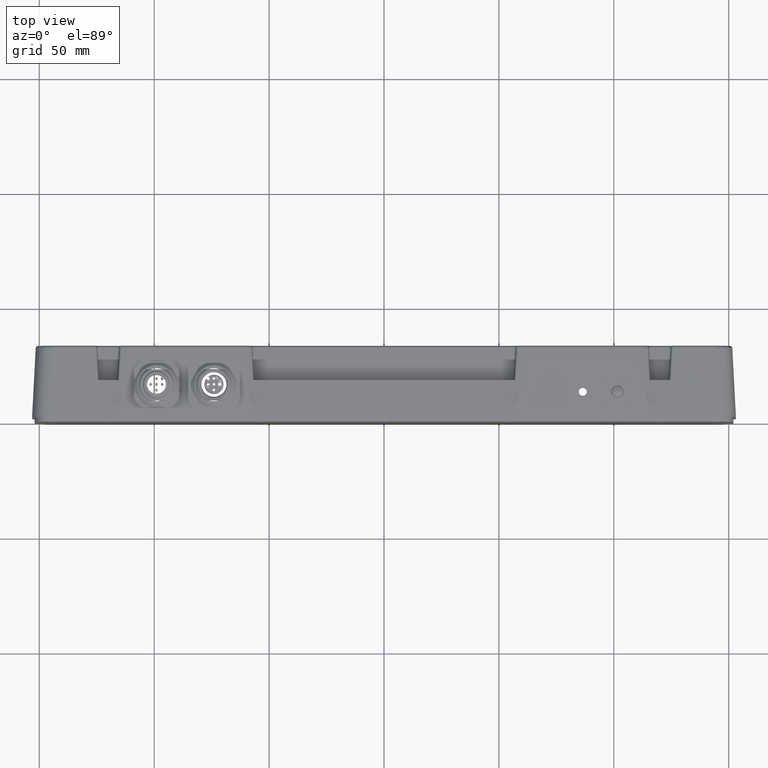
[diagram: clean part render]
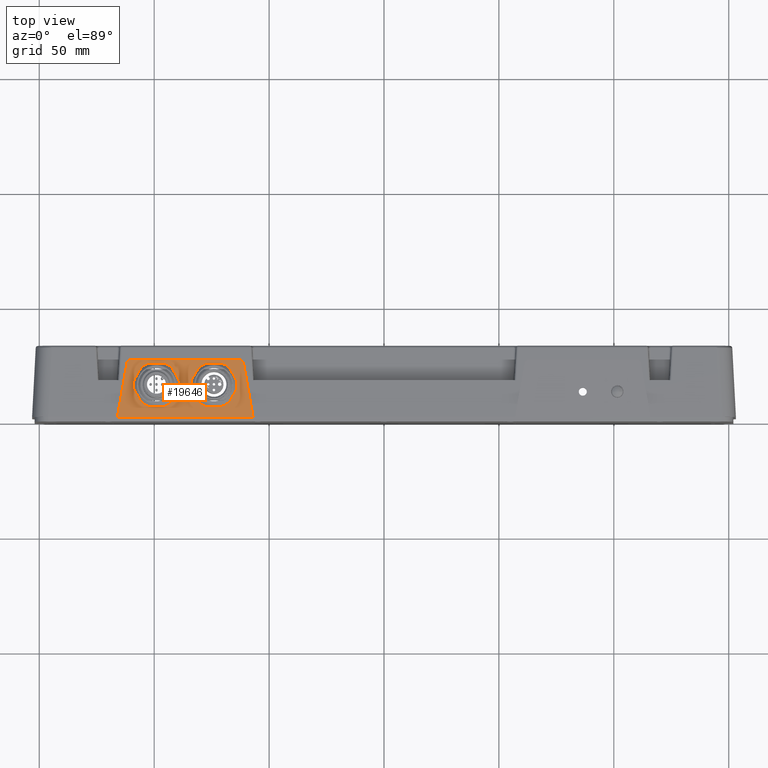
[diagram: same view with one face highlighted and labeled with its STEP entity id]
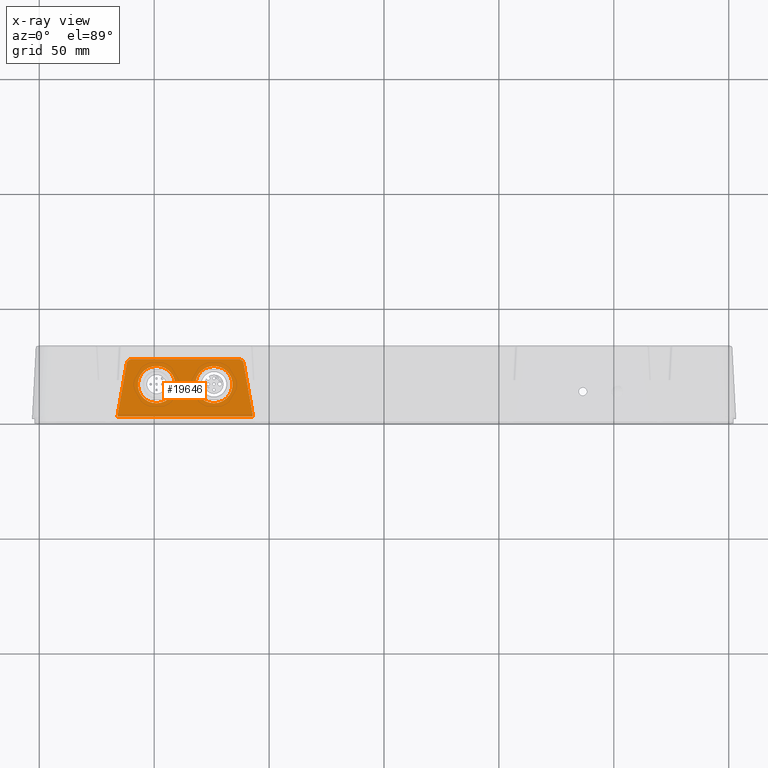
[diagram: x-ray of the same camera — body ghosted, the highlighted face saturated]
A machine part, top view. The second image highlights one B-rep face of the part: STEP entity #19646.
The next image is the same camera in x-ray: the body ghosted, the highlighted face saturated — about 0% of this face is hidden behind the body in this view.
In plain terms, the highlighted planar face has unit normal (0, 0.0087, 1).
Its self-contained STEP definition (entity closure, byte-faithful):
#63 = CARTESIAN_POINT ( 'NONE',  ( -74.00000000000001421, 7.899776966078615459, 32.57315459833387905 ) ) ;
#398 = CARTESIAN_POINT ( 'NONE',  ( -61.50451406748991445, 27.54637035716774918, 32.40170137527103833 ) ) ;
#650 = FACE_BOUND ( 'NONE', #2643, .T. ) ;
#843 = ORIENTED_EDGE ( 'NONE', *, *, #20109, .F. ) ;
#927 = CARTESIAN_POINT ( 'NONE',  ( -111.7069147452497475, 26.34729797533385920, 32.41216552141886353 ) ) ;
#1103 = CARTESIAN_POINT ( 'NONE',  ( -111.5918254822883569, 27.00000162000000259, 32.40646946300529407 ) ) ;
#1369 = AXIS2_PLACEMENT_3D ( 'NONE', #24805, #14124, #8992 ) ;
#1757 = DIRECTION ( 'NONE',  ( 0.000000000000000000, -0.9999619230641711987, 0.008726535498373745592 ) ) ;
#2349 = VERTEX_POINT ( 'NONE', #29423 ) ;
#2391 = ORIENTED_EDGE ( 'NONE', *, *, #9568, .F. ) ;
#2607 = VERTEX_POINT ( 'NONE', #63 ) ;
#2643 = EDGE_LOOP ( 'NONE', ( #17280 ) ) ;
#2792 = EDGE_CURVE ( 'NONE', #28292, #28292, #23703, .T. ) ;
#3117 = CARTESIAN_POINT ( 'NONE',  ( -111.8832417259582002, 25.34729797533386630, 32.42089238920961236 ) ) ;
#3212 = CARTESIAN_POINT ( 'NONE',  ( 1.118499479934645828E-23, 2.000001619999999924, 32.62464115777427764 ) ) ;
#3360 = AXIS2_PLACEMENT_3D ( 'NONE', #22179, #32756, #14259 ) ;
#3479 = EDGE_CURVE ( 'NONE', #17078, #2349, #28824, .T. ) ;
#3904 = ORIENTED_EDGE ( 'NONE', *, *, #27650, .T. ) ;
#4274 = DIRECTION ( 'NONE',  ( 0.000000000000000000, 0.008726535498373953759, 0.9999619230641713097 ) ) ;
#4485 =( BOUNDED_CURVE ( )  B_SPLINE_CURVE ( 3, ( #31574, #23347, #18510, #21088 ),
 .UNSPECIFIED., .F., .T. ) 
 B_SPLINE_CURVE_WITH_KNOTS ( ( 4, 4 ),
 ( 1.745329251994330200, 3.141592653589793116 ),
 .UNSPECIFIED. ) 
 CURVE ( )  GEOMETRIC_REPRESENTATION_ITEM ( )  RATIONAL_B_SPLINE_CURVE ( ( 1.000000000000000000, 0.8440296287459855273, 0.8440296287459855273, 1.000000000000000000 ) ) 
 REPRESENTATION_ITEM ( '' )  );
#4649 = EDGE_CURVE ( 'NONE', #2607, #2607, #24311, .T. ) ;
#4958 = LINE ( 'NONE', #3212, #18026 ) ;
#4991 = LINE ( 'NONE', #10161, #30831 ) ;
#5775 = DIRECTION ( 'NONE',  ( 0.1736417650412786229, -0.9847713852049319039, 0.008593969682805856908 ) ) ;
#7340 = CARTESIAN_POINT ( 'NONE',  ( -99.00000000000000000, 7.899776966078615459, 32.57315459833387905 ) ) ;
#8426 = LINE ( 'NONE', #1103, #22405 ) ;
#8579 = DIRECTION ( 'NONE',  ( 1.000000000000000000, -0.000000000000000000, -0.000000000000000000 ) ) ;
#8951 = CARTESIAN_POINT ( 'NONE',  ( -111.8832417259582002, 25.34729797533386630, 32.42089238920961236 ) ) ;
#8992 = DIRECTION ( 'NONE',  ( 0.000000000000000000, -0.9999619230641711987, 0.008726535498373745592 ) ) ;
#9568 = EDGE_CURVE ( 'NONE', #10936, #18130, #4991, .T. ) ;
#10161 = CARTESIAN_POINT ( 'NONE',  ( -115.9033348786963415, 2.548216765040473675, 32.61985695668261087 ) ) ;
#10268 = CARTESIAN_POINT ( 'NONE',  ( -99.00000000000000000, 15.99946854289840559, 32.50246966079705402 ) ) ;
#10936 = VERTEX_POINT ( 'NONE', #11087 ) ;
#11046 = FACE_BOUND ( 'NONE', #33339, .T. ) ;
#11087 = CARTESIAN_POINT ( 'NONE',  ( -115.9999999999999858, 2.000001619999999924, 32.62464115777427764 ) ) ;
#11480 = CARTESIAN_POINT ( 'NONE',  ( -63.08637378006619656, 27.00000162000000259, 32.40646946300530828 ) ) ;
#12960 = ORIENTED_EDGE ( 'NONE', *, *, #3479, .F. ) ;
#13260 = VERTEX_POINT ( 'NONE', #11480 ) ;
#14124 = DIRECTION ( 'NONE',  ( -0.000000000000000000, -0.008726535498373953759, -0.9999619230641713097 ) ) ;
#14259 = DIRECTION ( 'NONE',  ( 0.000000000000000000, -0.9999619230641713097, 0.008726535498373953759 ) ) ;
#16113 = EDGE_CURVE ( 'NONE', #17078, #13260, #4485, .T. ) ;
#16794 = EDGE_LOOP ( 'NONE', ( #12960, #28291, #23653, #3904, #2391, #843 ) ) ;
#17078 = VERTEX_POINT ( 'NONE', #19724 ) ;
#17280 = ORIENTED_EDGE ( 'NONE', *, *, #4649, .T. ) ;
#18026 = VECTOR ( 'NONE', #19114, 1000.000000000000000 ) ;
#18130 = VERTEX_POINT ( 'NONE', #8951 ) ;
#18242 = VERTEX_POINT ( 'NONE', #21055 ) ;
#18510 = CARTESIAN_POINT ( 'NONE',  ( -62.07094716818046010, 27.00000161999999904, 32.40646946300531539 ) ) ;
#18683 = CARTESIAN_POINT ( 'NONE',  ( -109.9136262199337892, 27.00000162000000259, 32.40646946300530828 ) ) ;
#18911 = PLANE ( 'NONE',  #3360 ) ;
#19114 = DIRECTION ( 'NONE',  ( -1.000000000000000000, -0.000000000000000000, -0.000000000000000000 ) ) ;
#19646 = ADVANCED_FACE ( 'NONE', ( #650, #23906, #11046 ), #18911, .T. ) ;
#19665 = ORIENTED_EDGE ( 'NONE', *, *, #2792, .F. ) ;
#19724 = CARTESIAN_POINT ( 'NONE',  ( -61.11675827404177141, 25.34729797533386275, 32.42089238920961236 ) ) ;
#20010 = EDGE_CURVE ( 'NONE', #18242, #13260, #8426, .T. ) ;
#20109 = EDGE_CURVE ( 'NONE', #2349, #10936, #4958, .T. ) ;
#21055 = CARTESIAN_POINT ( 'NONE',  ( -109.9136262199337892, 27.00000162000000259, 32.40646946300530828 ) ) ;
#21088 = CARTESIAN_POINT ( 'NONE',  ( -63.08637378006619656, 27.00000162000000259, 32.40646946300530828 ) ) ;
#22179 = CARTESIAN_POINT ( 'NONE',  ( 1.118499479934645828E-23, 2.000001619999999924, 32.62464115777427764 ) ) ;
#22405 = VECTOR ( 'NONE', #8579, 1000.000000000000000 ) ;
#23347 = CARTESIAN_POINT ( 'NONE',  ( -61.29308525475024538, 26.34729797533386275, 32.41216552141887064 ) ) ;
#23653 = ORIENTED_EDGE ( 'NONE', *, *, #20010, .F. ) ;
#23703 = CIRCLE ( 'NONE', #25916, 8.100000000000003197 ) ;
#23906 = FACE_OUTER_BOUND ( 'NONE', #16794, .T. ) ;
#24311 = CIRCLE ( 'NONE', #1369, 8.100000000000003197 ) ;
#24805 = CARTESIAN_POINT ( 'NONE',  ( -74.00000000000001421, 15.99946854289840559, 32.50246966079705402 ) ) ;
#25916 = AXIS2_PLACEMENT_3D ( 'NONE', #10268, #4274, #1757 ) ;
#26632 =( BOUNDED_CURVE ( )  B_SPLINE_CURVE ( 3, ( #18683, #29195, #927, #3117 ),
 .UNSPECIFIED., .F., .T. ) 
 B_SPLINE_CURVE_WITH_KNOTS ( ( 4, 4 ),
 ( 3.141592653589793116, 4.537856055185253368 ),
 .UNSPECIFIED. ) 
 CURVE ( )  GEOMETRIC_REPRESENTATION_ITEM ( )  RATIONAL_B_SPLINE_CURVE ( ( 1.000000000000000000, 0.8440296287459860824, 0.8440296287459860824, 1.000000000000000000 ) ) 
 REPRESENTATION_ITEM ( '' )  );
#27650 = EDGE_CURVE ( 'NONE', #18242, #18130, #26632, .T. ) ;
#28291 = ORIENTED_EDGE ( 'NONE', *, *, #16113, .T. ) ;
#28292 = VERTEX_POINT ( 'NONE', #7340 ) ;
#28824 = LINE ( 'NONE', #398, #29470 ) ;
#29195 = CARTESIAN_POINT ( 'NONE',  ( -110.9290528318195328, 27.00000162000000259, 32.40646946300531539 ) ) ;
#29423 = CARTESIAN_POINT ( 'NONE',  ( -57.00000000000000711, 2.000001620000003477, 32.62464115777427764 ) ) ;
#29470 = VECTOR ( 'NONE', #5775, 1000.000000000000227 ) ;
#30831 = VECTOR ( 'NONE', #30917, 1000.000000000000000 ) ;
#30917 = DIRECTION ( 'NONE',  ( 0.1736417650412788727, 0.9847713852049319039, -0.008593969682805856908 ) ) ;
#31574 = CARTESIAN_POINT ( 'NONE',  ( -61.11675827404177141, 25.34729797533386275, 32.42089238920961236 ) ) ;
#32756 = DIRECTION ( 'NONE',  ( 0.000000000000000000, 0.008726535498373953759, 0.9999619230641713097 ) ) ;
#33339 = EDGE_LOOP ( 'NONE', ( #19665 ) ) ;